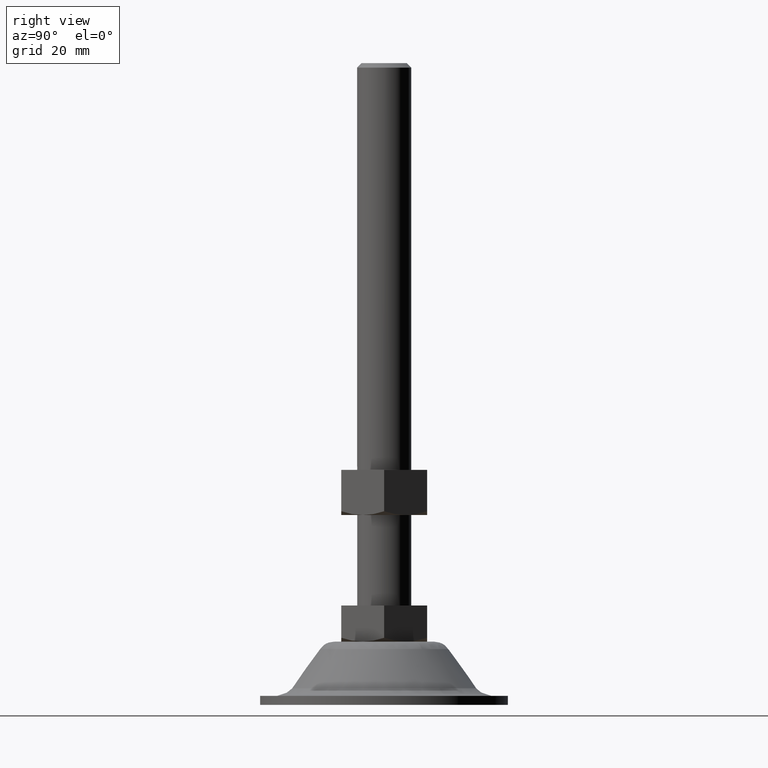
[diagram: clean part render]
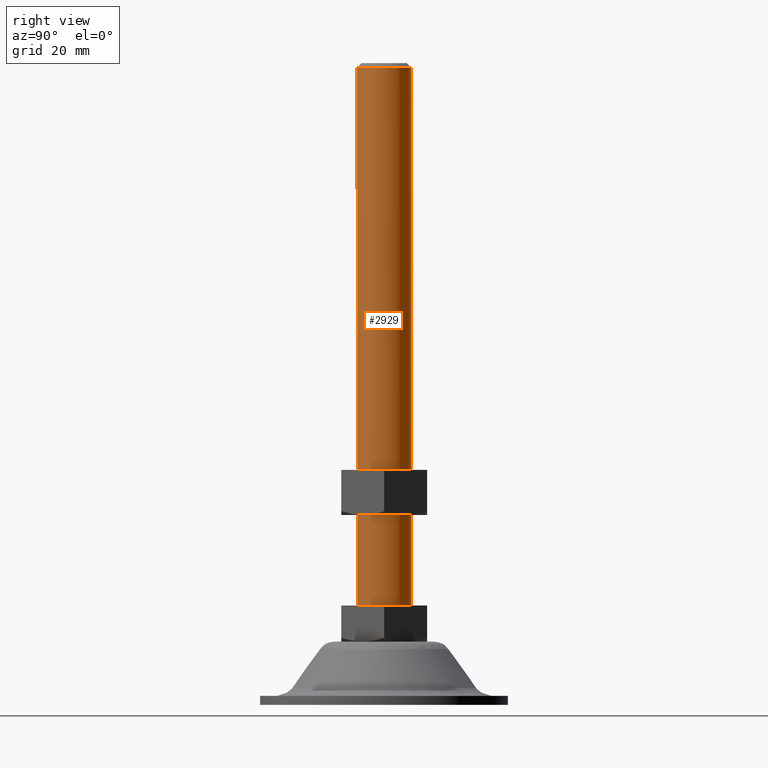
[diagram: same view with one face highlighted and labeled with its STEP entity id]
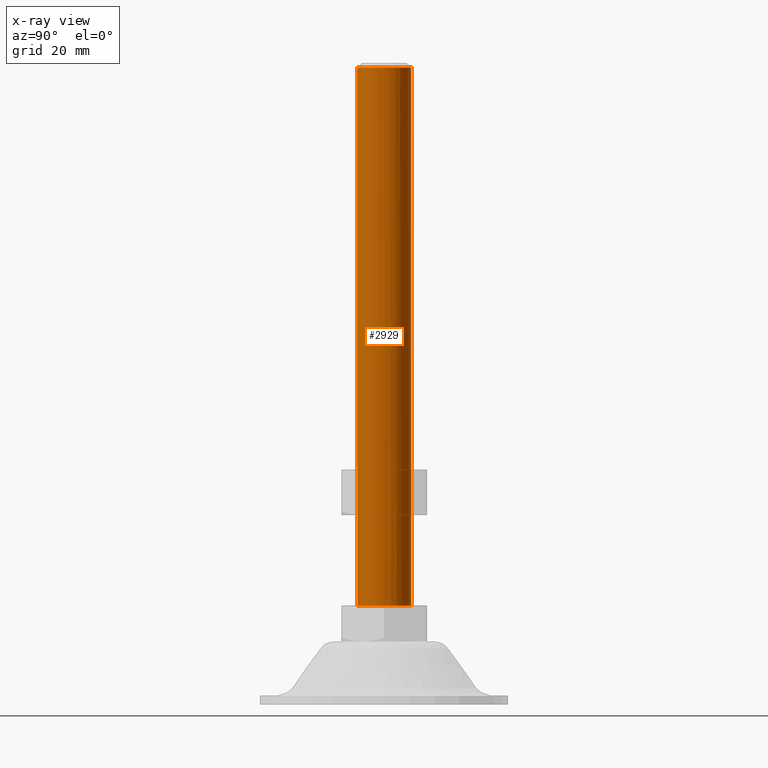
[diagram: x-ray of the same camera — body ghosted, the highlighted face saturated]
A machine part, right view. The second image highlights one B-rep face of the part: STEP entity #2929.
The next image is the same camera in x-ray: the body ghosted, the highlighted face saturated — about 0% of this face is hidden behind the body in this view.
In plain terms, the highlighted face is a freeform B-spline surface patch.
Its self-contained STEP definition (entity closure, byte-faithful):
#2624=CARTESIAN_POINT('',(2.425292592045881,-5.487982857397782,140.999999999989600));
#2625=VERTEX_POINT('',#2624);
#2626=CARTESIAN_POINT('',(-0.744761077119877,-5.953598150526990,141.0));
#2627=VERTEX_POINT('',#2626);
#2628=CARTESIAN_POINT('',(2.425292592045882,-5.487982857397782,140.999999999989600));
#2629=CARTESIAN_POINT('',(1.266693703641987,-5.999999999999999,140.999999999999970));
#2630=CARTESIAN_POINT('',(0.0,-6.0,141.0));
#2631=CARTESIAN_POINT('',(-0.373826056928623,-6.0,141.0));
#2632=CARTESIAN_POINT('',(-0.744761077119877,-5.953598150526990,141.000000000000060));
#2640=(BOUNDED_CURVE()B_SPLINE_CURVE(2,(#2628,#2629,#2630,#2631,#2632),.UNSPECIFIED.,.F.,.U.)B_SPLINE_CURVE_WITH_KNOTS((3,2,3),(0.181361578453421,0.250000000000000,0.271473732514664),.UNSPECIFIED.)CURVE()GEOMETRIC_REPRESENTATION_ITEM()RATIONAL_B_SPLINE_CURVE((0.883326595745005,0.919585087115792,1.0,0.974841957455364,0.954005811520296))REPRESENTATION_ITEM(''));
#2641=EDGE_CURVE('',#2625,#2627,#2640,.T.);
#2684=CARTESIAN_POINT('',(0.052359213206254,5.999771538383000,141.000000000000110));
#2685=VERTEX_POINT('',#2684);
#2742=CARTESIAN_POINT('',(6.0,0.0,141.0));
#2743=VERTEX_POINT('',#2742);
#2744=CARTESIAN_POINT('',(6.0,0.0,141.0));
#2745=CARTESIAN_POINT('',(6.0,-3.908220015371557,141.0));
#2746=CARTESIAN_POINT('',(2.425292592045881,-5.487982857397782,140.999999999989600));
#2754=(BOUNDED_CURVE()B_SPLINE_CURVE(2,(#2744,#2745,#2746),.UNSPECIFIED.,.F.,.U.)B_SPLINE_CURVE_WITH_KNOTS((3,3),(0.0,0.181361578453421),.UNSPECIFIED.)CURVE()GEOMETRIC_REPRESENTATION_ITEM()RATIONAL_B_SPLINE_CURVE((1.0,0.787521694070756,0.883326595745005))REPRESENTATION_ITEM(''));
#2755=EDGE_CURVE('',#2743,#2625,#2754,.T.);
#2757=CARTESIAN_POINT('',(0.052359213206254,5.999771538383000,141.000000000000170));
#2758=CARTESIAN_POINT('',(6.0,5.947867262713263,141.0));
#2759=CARTESIAN_POINT('',(6.0,0.0,141.0));
#2767=(BOUNDED_CURVE()B_SPLINE_CURVE(2,(#2757,#2758,#2759),.UNSPECIFIED.,.F.,.U.)B_SPLINE_CURVE_WITH_KNOTS((3,3),(0.751539894360354,1.0),.UNSPECIFIED.)CURVE()GEOMETRIC_REPRESENTATION_ITEM()RATIONAL_B_SPLINE_CURVE((0.996414028041700,0.708910879649895,1.0))REPRESENTATION_ITEM(''));
#2768=EDGE_CURVE('',#2685,#2743,#2767,.T.);
#2823=CARTESIAN_POINT('',(0.052359213377040,5.999771538381651,22.0));
#2824=VERTEX_POINT('',#2823);
#2825=CARTESIAN_POINT('',(0.052359213206254,5.999771538383000,141.000000000000110));
#2826=CARTESIAN_POINT('',(0.052359213377040,5.999771538381651,22.0));
#2827=QUASI_UNIFORM_CURVE('',1,(#2825,#2826),.UNSPECIFIED.,.F.,.U.);
#2828=EDGE_CURVE('',#2685,#2824,#2827,.T.);
#2847=CARTESIAN_POINT('',(-0.744768012619522,-5.953597282935650,22.0));
#2848=VERTEX_POINT('',#2847);
#2862=CARTESIAN_POINT('',(-0.744761077119877,-5.953598150526990,141.0));
#2863=CARTESIAN_POINT('',(-0.744768012619522,-5.953597282935650,22.0));
#2864=QUASI_UNIFORM_CURVE('',1,(#2862,#2863),.UNSPECIFIED.,.F.,.U.);
#2865=EDGE_CURVE('',#2627,#2848,#2864,.T.);
#2870=CARTESIAN_POINT('',(0.052359212990243,5.999771538385026,143.974999999999990));
#2871=CARTESIAN_POINT('',(6.052130751375269,5.947412325394783,143.975000000000020));
#2872=CARTESIAN_POINT('',(5.999771538385026,-0.052359212990243,143.974999999999990));
#2873=CARTESIAN_POINT('',(5.947412325394783,-6.052130751375269,143.975000000000020));
#2874=CARTESIAN_POINT('',(-0.052359212990243,-5.999771538385026,143.974999999999990));
#2875=CARTESIAN_POINT('',(-0.399900953749042,-5.996738587561654,143.975000000000050));
#2876=CARTESIAN_POINT('',(-0.744768012478976,-5.953597282953231,143.975000000000050));
#2877=CARTESIAN_POINT('',(0.052359212990243,5.999771538385026,18.950624999999999));
#2878=CARTESIAN_POINT('',(6.052130751375269,5.947412325394783,18.950625000000002));
#2879=CARTESIAN_POINT('',(5.999771538385026,-0.052359212990243,18.950624999999999));
#2880=CARTESIAN_POINT('',(5.947412325394783,-6.052130751375269,18.950625000000002));
#2881=CARTESIAN_POINT('',(-0.052359212990243,-5.999771538385026,18.950624999999999));
#2882=CARTESIAN_POINT('',(-0.399900953749042,-5.996738587561654,18.950625000000002));
#2883=CARTESIAN_POINT('',(-0.744768012478976,-5.953597282953231,18.950625000000006));
#2891=(BOUNDED_SURFACE()B_SPLINE_SURFACE(2,1,((#2870,#2877),(#2871,#2878),(#2872,#2879),(#2873,#2880),(#2874,#2881),(#2875,#2882),(#2876,#2883)),.UNSPECIFIED.,.F.,.F.,.U.)B_SPLINE_SURFACE_WITH_KNOTS((3,2,2,3),(2,2),(0.0,9.941125496954278,19.882250993908560,20.677541033664902),(0.0,125.024375000000110),.UNSPECIFIED.)GEOMETRIC_REPRESENTATION_ITEM()RATIONAL_B_SPLINE_SURFACE(((1.0,1.0),(0.707106781186548,0.707106781186548),(1.0,1.0),(0.707106781186548,0.707106781186548),(1.0,1.0),(0.976568542494924,0.976568542494924),(0.956886118190660,0.956886118190660)))REPRESENTATION_ITEM('')SURFACE());
#2892=ORIENTED_EDGE('',*,*,#2755,.T.);
#2893=ORIENTED_EDGE('',*,*,#2641,.T.);
#2894=ORIENTED_EDGE('',*,*,#2865,.T.);
#2895=CARTESIAN_POINT('',(6.0,0.0,22.0));
#2896=VERTEX_POINT('',#2895);
#2897=CARTESIAN_POINT('',(-0.744768012619522,-5.953597282935651,22.000000000000004));
#2898=CARTESIAN_POINT('',(-0.373829565343157,-6.0,22.0));
#2899=CARTESIAN_POINT('',(0.0,-6.0,22.0));
#2900=CARTESIAN_POINT('',(6.0,-6.0,22.000000000000007));
#2901=CARTESIAN_POINT('',(6.0,0.0,22.0));
#2909=(BOUNDED_CURVE()B_SPLINE_CURVE(2,(#2897,#2898,#2899,#2900,#2901),.UNSPECIFIED.,.F.,.U.)B_SPLINE_CURVE_WITH_KNOTS((3,2,3),(0.728526071021336,0.750000000000000,1.0),.UNSPECIFIED.)CURVE()GEOMETRIC_REPRESENTATION_ITEM()RATIONAL_B_SPLINE_CURVE((0.954005430259267,0.974841727283471,1.0,0.707106781186548,1.0))REPRESENTATION_ITEM(''));
#2910=EDGE_CURVE('',#2848,#2896,#2909,.T.);
#2911=ORIENTED_EDGE('',*,*,#2910,.T.);
#2912=CARTESIAN_POINT('',(6.0,0.0,22.0));
#2913=CARTESIAN_POINT('',(6.000000000000001,5.947867262802937,22.000000000000004));
#2914=CARTESIAN_POINT('',(0.052359213377040,5.999771538381651,21.999999999999993));
#2922=(BOUNDED_CURVE()B_SPLINE_CURVE(2,(#2912,#2913,#2914),.UNSPECIFIED.,.F.,.U.)B_SPLINE_CURVE_WITH_KNOTS((3,3),(0.0,0.248460105642302),.UNSPECIFIED.)CURVE()GEOMETRIC_REPRESENTATION_ITEM()RATIONAL_B_SPLINE_CURVE((1.0,0.708910879646784,0.996414028047845))REPRESENTATION_ITEM(''));
#2923=EDGE_CURVE('',#2896,#2824,#2922,.T.);
#2924=ORIENTED_EDGE('',*,*,#2923,.T.);
#2925=ORIENTED_EDGE('',*,*,#2828,.F.);
#2926=ORIENTED_EDGE('',*,*,#2768,.T.);
#2927=EDGE_LOOP('',(#2892,#2893,#2894,#2911,#2924,#2925,#2926));
#2928=FACE_OUTER_BOUND('',#2927,.T.);
#2929=ADVANCED_FACE('',(#2928),#2891,.T.);